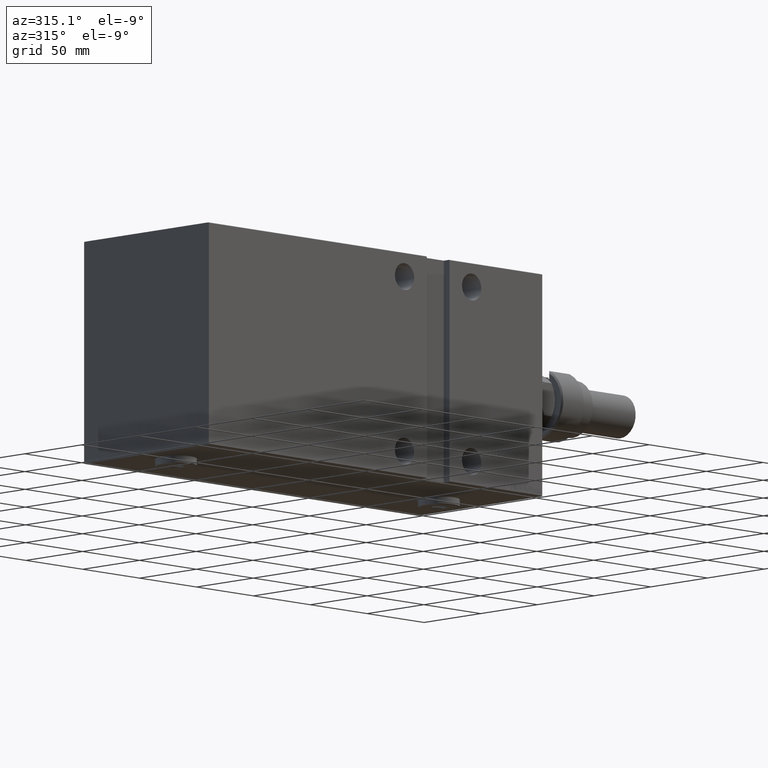
[diagram: clean part render]
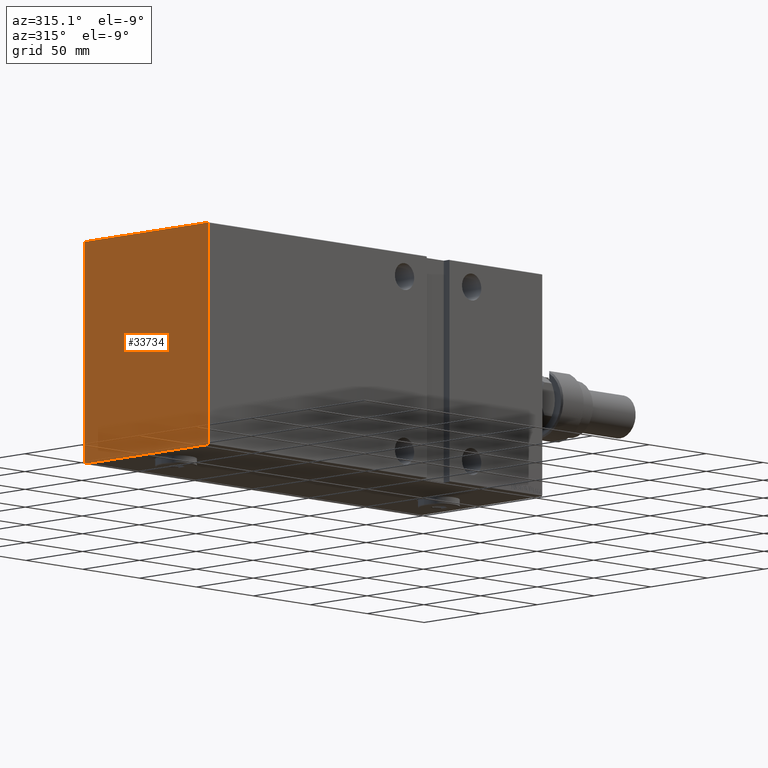
[diagram: same view with one face highlighted and labeled with its STEP entity id]
A machine part, auxiliary view. The second image highlights one B-rep face of the part: STEP entity #33734.
In plain terms, the highlighted planar face has unit normal (-1, -0, 0).
Its self-contained STEP definition (entity closure, byte-faithful):
#215 = VECTOR ( 'NONE', #25775, 1000.000000000000114 ) ;
#370 = VECTOR ( 'NONE', #38991, 1000.000000000000114 ) ;
#1081 = CARTESIAN_POINT ( 'NONE',  ( 293.0000000000000000, 54.99999999999999289, 69.70000000000001705 ) ) ;
#1895 = EDGE_CURVE ( 'NONE', #30132, #36199, #2421, .T. ) ;
#2037 = VECTOR ( 'NONE', #16686, 1000.000000000000114 ) ;
#2072 = ORIENTED_EDGE ( 'NONE', *, *, #11127, .T. ) ;
#2185 = ORIENTED_EDGE ( 'NONE', *, *, #24810, .T. ) ;
#2421 = LINE ( 'NONE', #34509, #370 ) ;
#3570 = DIRECTION ( 'NONE',  ( 1.000000000000000000, 0.000000000000000000, 0.000000000000000000 ) ) ;
#3944 = VECTOR ( 'NONE', #32411, 1000.000000000000000 ) ;
#4338 = CARTESIAN_POINT ( 'NONE',  ( 293.0000000000000000, -62.34999999999999432, 62.34999999999999432 ) ) ;
#4399 = DIRECTION ( 'NONE',  ( 0.000000000000000000, 1.000000000000000000, 0.000000000000000000 ) ) ;
#5605 = CARTESIAN_POINT ( 'NONE',  ( 293.0000000000000000, 55.00000000000002132, -70.00000000000000000 ) ) ;
#6307 = LINE ( 'NONE', #5605, #36702 ) ;
#7208 = VERTEX_POINT ( 'NONE', #34799 ) ;
#7744 = ORIENTED_EDGE ( 'NONE', *, *, #25683, .T. ) ;
#7782 = ORIENTED_EDGE ( 'NONE', *, *, #27447, .T. ) ;
#8072 = LINE ( 'NONE', #37286, #215 ) ;
#8134 = DIRECTION ( 'NONE',  ( 0.000000000000000000, 0.000000000000000000, -1.000000000000000000 ) ) ;
#10658 = PLANE ( 'NONE',  #23034 ) ;
#11127 = EDGE_CURVE ( 'NONE', #7208, #29143, #11673, .T. ) ;
#11673 = LINE ( 'NONE', #26063, #44307 ) ;
#12392 = EDGE_CURVE ( 'NONE', #36199, #28145, #6307, .T. ) ;
#15996 = LINE ( 'NONE', #33910, #2037 ) ;
#16244 = CARTESIAN_POINT ( 'NONE',  ( 293.0000000000000000, 55.00000000000002132, -69.69999999999998863 ) ) ;
#16686 = DIRECTION ( 'NONE',  ( -0.000000000000000000, -0.7071067811865474617, 0.7071067811865474617 ) ) ;
#17530 = ORIENTED_EDGE ( 'NONE', *, *, #12392, .T. ) ;
#18348 = ORIENTED_EDGE ( 'NONE', *, *, #41362, .T. ) ;
#19191 = DIRECTION ( 'NONE',  ( 0.000000000000000000, -0.7071067811865474617, -0.7071067811865474617 ) ) ;
#19772 = CARTESIAN_POINT ( 'NONE',  ( 293.0000000000000000, -54.69999999999999574, -70.00000000000000000 ) ) ;
#22203 = DIRECTION ( 'NONE',  ( 0.000000000000000000, 0.000000000000000000, -1.000000000000000000 ) ) ;
#22334 = CARTESIAN_POINT ( 'NONE',  ( 293.0000000000000000, -54.99999999999999289, -70.00000000000000000 ) ) ;
#22407 = EDGE_CURVE ( 'NONE', #27109, #30132, #25874, .T. ) ;
#22577 = CARTESIAN_POINT ( 'NONE',  ( 293.0000000000000000, 54.69999999999999574, 70.00000000000000000 ) ) ;
#22737 = LINE ( 'NONE', #4338, #35609 ) ;
#23034 = AXIS2_PLACEMENT_3D ( 'NONE', #39417, #3570, #22203 ) ;
#24810 = EDGE_CURVE ( 'NONE', #43850, #40896, #39948, .T. ) ;
#25683 = EDGE_CURVE ( 'NONE', #40896, #7208, #22737, .T. ) ;
#25775 = DIRECTION ( 'NONE',  ( -0.000000000000000000, 0.7071067811865474617, -0.7071067811865474617 ) ) ;
#25874 = LINE ( 'NONE', #22334, #43771 ) ;
#26063 = CARTESIAN_POINT ( 'NONE',  ( 293.0000000000000000, -54.99999999999999289, 70.00000000000000000 ) ) ;
#27109 = VERTEX_POINT ( 'NONE', #19772 ) ;
#27447 = EDGE_CURVE ( 'NONE', #29143, #27109, #8072, .T. ) ;
#27692 = ORIENTED_EDGE ( 'NONE', *, *, #22407, .T. ) ;
#28145 = VERTEX_POINT ( 'NONE', #1081 ) ;
#28586 = FACE_OUTER_BOUND ( 'NONE', #35012, .T. ) ;
#29143 = VERTEX_POINT ( 'NONE', #37613 ) ;
#30132 = VERTEX_POINT ( 'NONE', #35937 ) ;
#32115 = CARTESIAN_POINT ( 'NONE',  ( 293.0000000000000000, -54.69999999999999574, 70.00000000000000000 ) ) ;
#32411 = DIRECTION ( 'NONE',  ( 0.000000000000000000, -1.000000000000000000, 0.000000000000000000 ) ) ;
#33734 = ADVANCED_FACE ( 'NONE', ( #28586 ), #10658, .T. ) ;
#33910 = CARTESIAN_POINT ( 'NONE',  ( 293.0000000000000000, 62.34999999999999432, 62.34999999999999432 ) ) ;
#34509 = CARTESIAN_POINT ( 'NONE',  ( 293.0000000000000000, 62.34999999999999432, -62.34999999999999432 ) ) ;
#34518 = ORIENTED_EDGE ( 'NONE', *, *, #1895, .T. ) ;
#34799 = CARTESIAN_POINT ( 'NONE',  ( 293.0000000000000000, -54.99999999999999289, 69.70000000000001705 ) ) ;
#35012 = EDGE_LOOP ( 'NONE', ( #27692, #34518, #17530, #18348, #2185, #7744, #2072, #7782 ) ) ;
#35063 = DIRECTION ( 'NONE',  ( 0.000000000000000000, -1.982541115402065110E-16, 1.000000000000000000 ) ) ;
#35609 = VECTOR ( 'NONE', #19191, 1000.000000000000114 ) ;
#35937 = CARTESIAN_POINT ( 'NONE',  ( 293.0000000000000000, 54.69999999999999574, -70.00000000000000000 ) ) ;
#36199 = VERTEX_POINT ( 'NONE', #16244 ) ;
#36702 = VECTOR ( 'NONE', #35063, 1000.000000000000000 ) ;
#37286 = CARTESIAN_POINT ( 'NONE',  ( 293.0000000000000000, -62.34999999999999432, -62.34999999999999432 ) ) ;
#37613 = CARTESIAN_POINT ( 'NONE',  ( 293.0000000000000000, -54.99999999999999289, -69.70000000000001705 ) ) ;
#38991 = DIRECTION ( 'NONE',  ( -0.000000000000000000, 0.7071067811865474617, 0.7071067811865474617 ) ) ;
#39417 = CARTESIAN_POINT ( 'NONE',  ( 293.0000000000000000, 0.000000000000000000, 0.000000000000000000 ) ) ;
#39716 = CARTESIAN_POINT ( 'NONE',  ( 293.0000000000000000, 54.99999999999999289, 70.00000000000000000 ) ) ;
#39948 = LINE ( 'NONE', #39716, #3944 ) ;
#40896 = VERTEX_POINT ( 'NONE', #32115 ) ;
#41362 = EDGE_CURVE ( 'NONE', #28145, #43850, #15996, .T. ) ;
#43771 = VECTOR ( 'NONE', #4399, 1000.000000000000000 ) ;
#43850 = VERTEX_POINT ( 'NONE', #22577 ) ;
#44307 = VECTOR ( 'NONE', #8134, 1000.000000000000000 ) ;